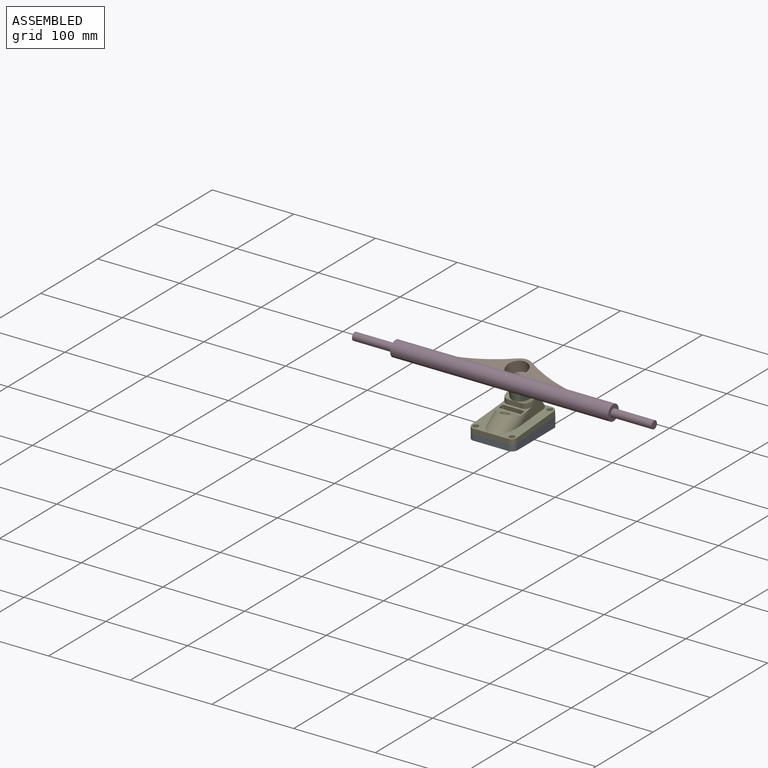
[diagram: assembled view]
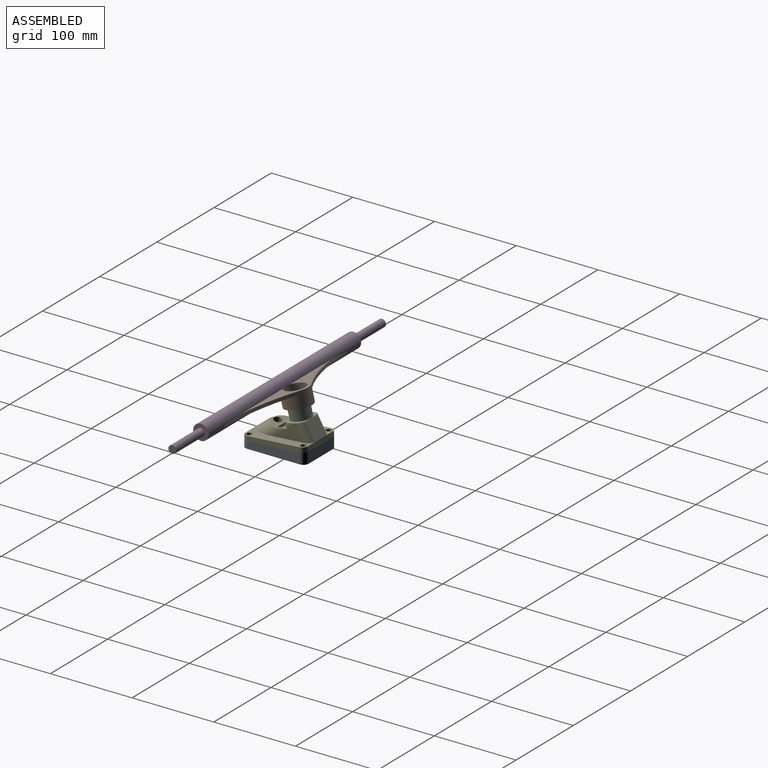
[diagram: assembled view, second angle]
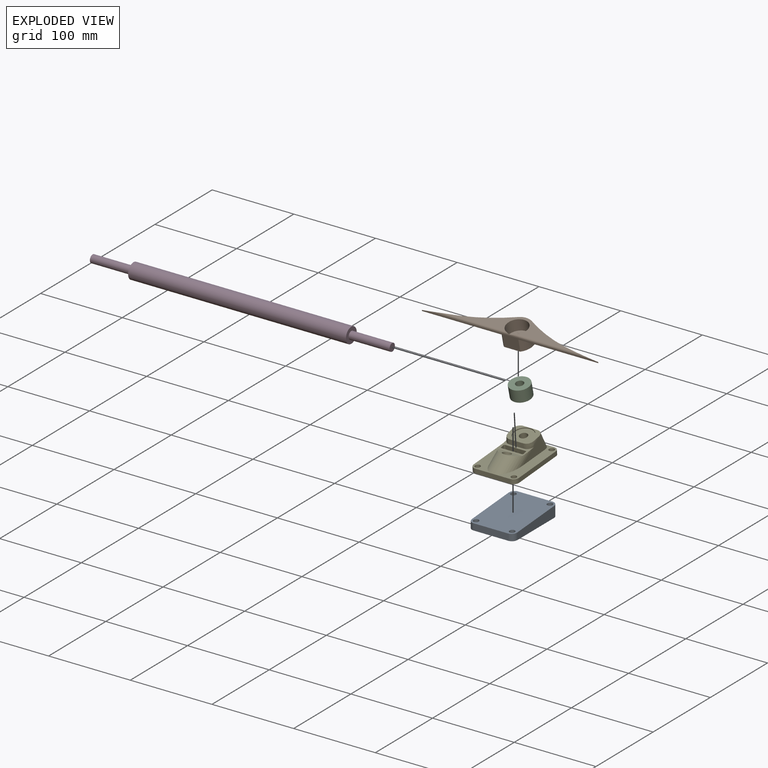
[diagram: exploded view]
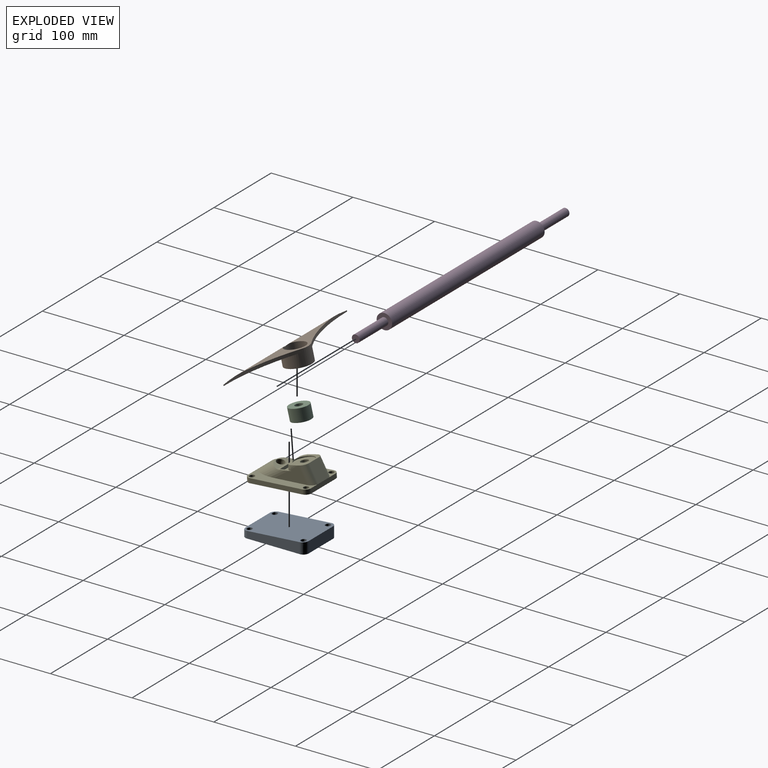
[diagram: exploded view, second angle]
ASSEMBLY  parts=5 mates=3
PART A: 14 faces, bbox 55.7x77.6x13.8 mm
  f0: plane 42.34x8mm, normal (0,-1,0), area 338.8mm2, adj f1,f3,f7,f9
  f1: plane 77.47x55.55mm, normal (0,0,-1), area 4129mm2, adj f0,f2,f4,f5,f6,f7,f8,f9
  f2: plane 42.34x13.72mm, normal (0,1,0), area 580.8mm2, adj f1,f3,f6,f8
  f3: plane 77.57x55.65mm, normal (0,-0.07,1), area 4140.2mm2, adj f0,f2,f4,f5,f6,f7,f8,f9
  f4: plane 64.26x13.23mm, normal (1,0,0), area 697.8mm2, adj f1,f3,f8,f9
  f5: plane 64.26x13.23mm, normal (-1,0,0), area 697.8mm2, adj f1,f3,f6,f7
  f6: cylinder r=6.6mm len=13.72mm, axis (0,0,1), area 140.4mm2, adj f1,f2,f3,f5
  f7: cylinder r=6.6mm len=8.49mm, axis (0,0,-1), area 84.8mm2, adj f0,f1,f3,f5
  f8: cylinder r=6.6mm len=13.72mm, axis (0,0,-1), area 140.4mm2, adj f1,f2,f3,f4
  f9: cylinder r=6.6mm len=8.49mm, axis (0,0,1), area 84.8mm2, adj f0,f1,f3,f4
  f10: cylinder r=3.3mm len=8.67mm, axis (0,0,-1), area 174.7mm2, adj f1,f3
  f11: cylinder r=3.3mm len=8.67mm, axis (0,0,-1), area 174.7mm2, adj f1,f3
  f12: cylinder r=3.3mm len=13.54mm, axis (0,0,-1), area 276mm2, adj f1,f3
  f13: cylinder r=3.3mm len=13.47mm, axis (0,0,-1), area 274.6mm2, adj f1,f3
PART B: 12 faces, bbox 215.9x29.7x19.1 mm
  f0: cylinder r=6.99mm len=13.97mm, axis (0,0,1), area 225.7mm2, adj f5,f10
  f1: plane 215.9x16.57mm, normal (0,1,0), area 589.3mm2, adj f2,f3,f4,f5,f7,f8,f9
  f2: cylinder r=194.33mm len=99.5mm, axis (0,0,1), area 373.4mm2, adj f1,f4,f6,f8,f9
  f3: cylinder r=194.33mm len=99.5mm, axis (0,0,1), area 373.4mm2, adj f1,f4,f6,f7,f9
  f4: cylinder r=16.51mm len=33.02mm, axis (0,0,1), area 1326.5mm2, adj f1,f2,f3,f5,f6,f7,f8
  f5: plane 33.02x29.73mm, normal (0,0,-1), area 658.7mm2, adj f0,f1,f4
  f6: plane 153.27x27.19mm, normal (0,0,1), area 1322.9mm2, adj f2,f3,f4,f9,f11
  f7: plane 99.5x27.4mm, normal (0,0,-1), area 720.5mm2, adj f1,f3,f4
  f8: plane 99.5x27.4mm, normal (0,0,-1), area 720.5mm2, adj f1,f2,f4
  f9: cylinder r=2.54mm len=215.9mm, axis (-1,0,0), area 708.7mm2, adj f1,f2,f3,f6,f11
  f10: plane 25.4x25.4mm, normal (0,0,1), area 353.4mm2, adj f0,f11
  f11: cylinder r=12.7mm len=25.4mm, axis (0,0,1), area 1107.5mm2, adj f6,f9,f10
PART C: 4 faces, bbox 24.1x24.1x15.1 mm
  f0: cylinder r=4.76mm len=15.11mm, axis (0,0,-1), area 452.2mm2, adj f2,f3
  f1: cylinder r=12.06mm len=24.13mm, axis (0,0,-1), area 1145.7mm2, adj f2,f3
  f2: plane 24.13x24.13mm, normal (0,0,1), area 386mm2, adj f0,f1
  f3: plane 24.13x24.13mm, normal (0,0,-1), area 386mm2, adj f0,f1
PART D: 7 faces, bbox 366.8x18.9x18.9 mm
  f0: cylinder r=9.46mm len=266.7mm, axis (-1,0,0), area 15854.9mm2, adj f1,f2
  f1: plane 18.92x18.92mm, normal (1,0,0), area 210mm2, adj f0,f3
  f2: plane 18.92x18.92mm, normal (-1,0,0), area 210mm2, adj f0,f5
  f3: cylinder r=4.76mm len=50.04mm, axis (-1,0,0), area 1497.3mm2, adj f1,f4
  f4: plane 9.53x9.53mm, normal (1,0,0), area 71.3mm2, adj f3
  f5: cylinder r=4.76mm len=50.04mm, axis (1,0,0), area 1497.3mm2, adj f2,f6
  f6: plane 9.53x9.53mm, normal (-1,0,0), area 71.3mm2, adj f5
PART E: 48 faces, bbox 65.8x87.7x47.3 mm
  f0: cylinder r=4.76mm len=25.34mm, axis (0,-0.16,0.99), area 699.9mm2, adj f13,f43,f46
  f1: cylinder r=15.24mm len=11.1mm, axis (0,0.85,0.53), area 21.5mm2, adj f19,f24,f39,f42
  f2: cylinder r=15.24mm len=46.64mm, axis (0,-0.85,-0.53), area 449.8mm2, adj f3,f21,f22,f23,f25
  f3: plane 87.73x37.01mm, normal (0,0,1), area 913mm2, adj f2,f4,f5,f9,f10,f11,f14,f17
  f4: cylinder r=6.6mm len=6.6mm, axis (0,0,-1), area 58mm2, adj f3,f5,f11,f13
  f5: plane 42.34x5.59mm, normal (0,-1,0), area 236.6mm2, adj f3,f4,f6,f12,f13,f23
  f6: cylinder r=6.6mm len=6.6mm, axis (0,0,-1), area 58mm2, adj f5,f7,f12,f13
  f7: plane 64.26x5.59mm, normal (1,0,0), area 359.1mm2, adj f6,f8,f12,f13
  f8: cylinder r=6.6mm len=6.6mm, axis (0,0,-1), area 58mm2, adj f7,f9,f12,f13
  f9: plane 42.34x5.59mm, normal (0,1,0), area 236.6mm2, adj f3,f8,f10,f12,f13,f18
  f10: cylinder r=6.6mm len=6.6mm, axis (0,0,-1), area 58mm2, adj f3,f9,f11,f13
  f11: plane 64.26x5.59mm, normal (-1,0,0), area 359.1mm2, adj f3,f4,f10,f13
  f12: plane 87.73x37.01mm, normal (0,0,1), area 913mm2, adj f5,f6,f7,f8,f9,f15,f16,f24
  f13: plane 77.82x55.9mm, normal (0,0,-1), area 4056.8mm2, adj f0,f4,f5,f6,f7,f8,f9,f10
  f14: cylinder r=3.3mm len=6.6mm, axis (0,0,1), area 115.9mm2, adj f3,f13
  f15: cylinder r=3.3mm len=6.6mm, axis (0,0,1), area 115.9mm2, adj f12,f13
  f16: cylinder r=3.3mm len=6.6mm, axis (0,0,1), area 115.9mm2, adj f12,f13
  f17: cylinder r=3.3mm len=6.6mm, axis (0,0,1), area 115.9mm2, adj f3,f13
  f18: plane 20.7x17.27mm, normal (0,0.9,0.43), area 396.4mm2, adj f9,f19,f41,f42
  f19: plane 33.87x25.74mm, normal (0,-0.16,0.99), area 285.8mm2, adj f1,f18,f20,f31,f38,f39,f41,f42
  f20: plane 17.29x5.99mm, normal (0,-1,0), area 102.2mm2, adj f19,f21,f37,f38,f39,f40
  f21: plane 32.87x19.41mm, normal (0,-0.11,0.99), area 210mm2, adj f2,f20,f22,f24,f25,f26,f27,f28
  f22: plane 33.29x15.11mm, normal (0,0.27,0.96), area 177.8mm2, adj f2,f21,f23,f32,f44
  f23: plane 20.32x12.7mm, normal (0,-0.53,0.85), area 48.7mm2, adj f2,f5,f22,f32
  f24: plane 40.27x19.37mm, normal (1,0,0), area 385.6mm2, adj f1,f12,f21,f32,f40,f42
  f25: plane 40.27x19.37mm, normal (-1,0,0), area 385.6mm2, adj f2,f3,f21,f31,f37,f41
  f26: plane 6.74x4.56mm, normal (1,0,0), area 24.6mm2, adj f21,f30,f33,f36
  f27: plane 24.89x6.31mm, normal (0,0.99,0.11), area 158.1mm2, adj f21,f30,f33,f34
  f28: plane 6.74x4.56mm, normal (-1,0,0), area 24.6mm2, adj f21,f30,f34,f35
  f29: plane 24.89x6.31mm, normal (0,-0.99,-0.11), area 158.1mm2, adj f21,f30,f35,f36
  f30: plane 27.43x6.38mm, normal (0,-0.11,0.99), area 174.7mm2, adj f26,f27,f28,f29,f33,f34,f35,f36
  f31: cylinder r=15.24mm len=11.1mm, axis (0,-0.85,-0.53), area 21.5mm2, adj f19,f25,f38,f41
  f32: cylinder r=15.24mm len=46.64mm, axis (0,0.85,0.53), area 449.8mm2, adj f12,f21,f22,f23,f24
  f33: cylinder r=1.27mm len=6.45mm, axis (0,0.11,-0.99), area 12.7mm2, adj f21,f26,f27,f30
  f34: cylinder r=1.27mm len=6.45mm, axis (0,0.11,-0.99), area 12.7mm2, adj f21,f27,f28,f30
  f35: cylinder r=1.27mm len=6.45mm, axis (0,0.11,-0.99), area 12.7mm2, adj f21,f28,f29,f30
  f36: cylinder r=1.27mm len=6.45mm, axis (0,0.11,-0.99), area 12.7mm2, adj f21,f26,f29,f30
  f37: cylinder r=7.62mm len=7.62mm, axis (0,0,-1), area 30.6mm2, adj f20,f21,f25,f38
  f38: bspline ~8.05x7.62mm, area 44.1mm2, adj f19,f20,f31,f37
  f39: bspline ~9.53x8.87mm, area 44.1mm2, adj f1,f19,f20,f40
  f40: cylinder r=7.62mm len=7.62mm, axis (0,0,-1), area 30.6mm2, adj f20,f21,f24,f39
  f41: cylinder r=7.62mm len=26mm, axis (0,-0.43,0.9), area 268.6mm2, adj f3,f18,f19,f25,f31
  f42: cylinder r=7.62mm len=26mm, axis (0,0.43,-0.9), area 268.6mm2, adj f1,f12,f18,f19,f24
  f43: plane 1.03x0.03mm, normal (0,-0.16,0.99), area 0mm2, adj f0,f13
  f44: cylinder r=5.08mm len=14.96mm, axis (0,0.27,0.96), area 405.4mm2, adj f22,f45
  f45: plane 10.16x9.79mm, normal (0,0.27,0.96), area 81.1mm2, adj f44
  f46: plane 24.13x23.82mm, normal (0,-0.16,0.99), area 386mm2, adj f0,f47
  f47: cylinder r=12.06mm len=24.13mm, axis (0,-0.16,0.99), area 96.3mm2, adj f19,f46
PLACE A t=(6.63,-21.79,12.81)mm fixed
PLACE B rot(axis=(0,-0.12,0.99),180deg) t=(6.51,2.08,75.96)mm
PLACE C rot(axis=(1,0,0),13.4deg) t=(6.51,32.08,47.92)mm
PLACE D rot(axis=(0,-0.12,0.99),180deg) t=(6.51,2.08,75.96)mm
PLACE E rot(axis=(1,0,0),4.2deg) t=(6.51,16.98,23.67)mm
MATE fastened C.f0 <-> E.f47  axis (0,0.23,-0.97) through (6.51,32.08,47.92)mm
MATE fastened A.f3 <-> E.f16  axis (0,-0.07,1) through (28.69,-16.08,21.23)mm
MATE fastened C.f0 <-> B.f0  axis (0,-0.23,0.97) through (6.51,28.58,62.62)mm
